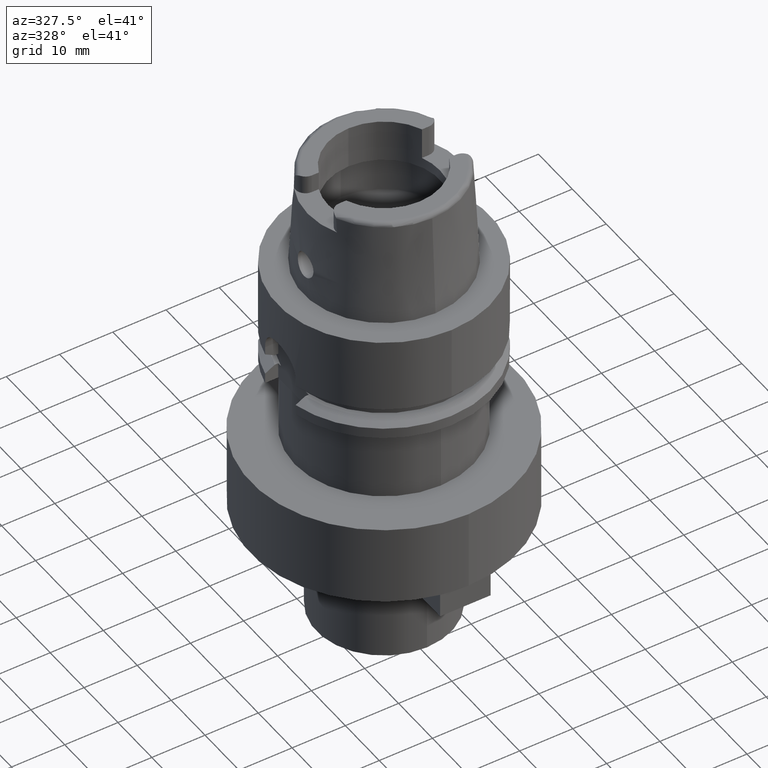
[diagram: clean part render]
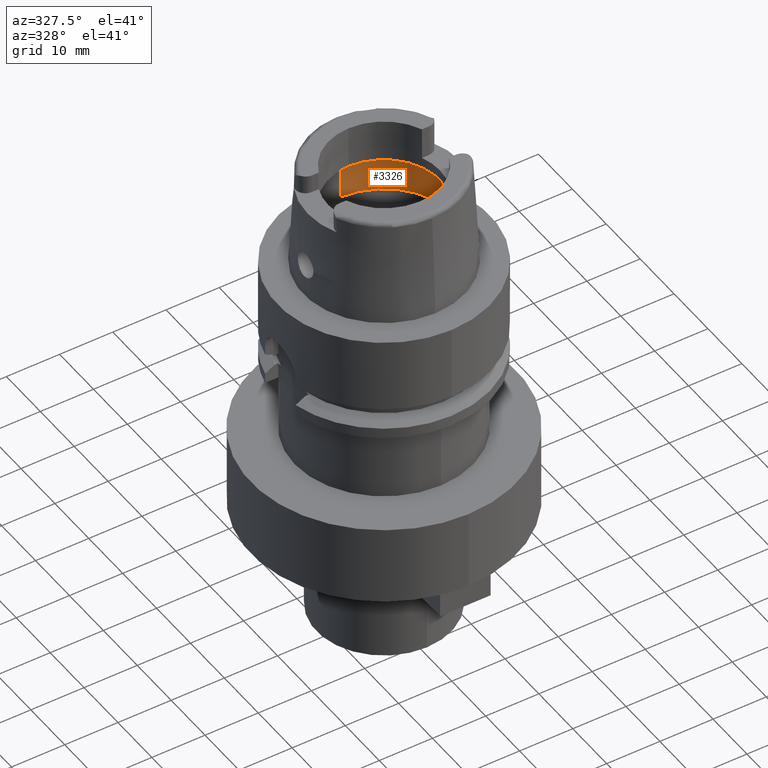
[diagram: same view with one face highlighted and labeled with its STEP entity id]
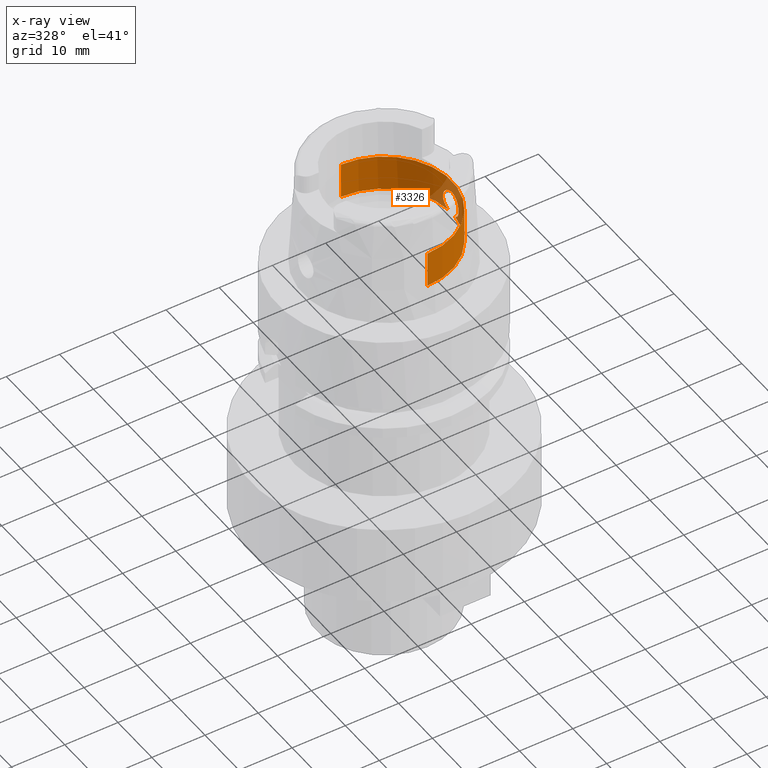
[diagram: x-ray of the same camera — body ghosted, the highlighted face saturated]
A machine part, auxiliary view. The second image highlights one B-rep face of the part: STEP entity #3326.
The next image is the same camera in x-ray: the body ghosted, the highlighted face saturated — about 10% of this face is hidden behind the body in this view.
In plain terms, the highlighted cylindrical surface (partial cylindrical patch) has radius 12.75 mm, axis along (0, 0, 1).
Its self-contained STEP definition (entity closure, byte-faithful):
#468=CARTESIAN_POINT('',(0.E0,0.E0,1.069831216351E1));
#469=DIRECTION('',(0.E0,0.E0,1.E0));
#470=DIRECTION('',(0.E0,-1.E0,0.E0));
#471=AXIS2_PLACEMENT_3D('',#468,#469,#470);
#516=DIRECTION('',(0.E0,-5.251609281303E-14,1.E0));
#517=VECTOR('',#516,6.764999999998E0);
#518=CARTESIAN_POINT('',(0.E0,-1.275E1,3.933312163513E0));
#519=LINE('',#518,#517);
#616=CARTESIAN_POINT('',(0.E0,0.E0,3.933312163513E0));
#617=DIRECTION('',(0.E0,0.E0,-1.E0));
#618=DIRECTION('',(9.968615066513E-1,-7.916524841634E-2,0.E0));
#619=AXIS2_PLACEMENT_3D('',#616,#617,#618);
#640=CARTESIAN_POINT('',(0.E0,0.E0,3.933312163513E0));
#641=DIRECTION('',(0.E0,0.E0,-1.E0));
#642=DIRECTION('',(0.E0,1.E0,0.E0));
#643=AXIS2_PLACEMENT_3D('',#640,#641,#642);
#665=CARTESIAN_POINT('',(1.270998420980E1,-1.009356917308E0,3.933312163513E0));
#666=CARTESIAN_POINT('',(1.269483754826E1,-1.200086109107E0,4.026463062103E0));
#667=CARTESIAN_POINT('',(1.265938320815E1,-1.541164298070E0,4.255445764535E0));
#668=CARTESIAN_POINT('',(1.260087449158E1,-1.954557774828E0,4.734712732083E0));
#669=CARTESIAN_POINT('',(1.255593315998E1,-2.218381533011E0,5.296058314245E0));
#670=CARTESIAN_POINT('',(1.253601676508E1,-2.325864774811E0,5.908059800596E0));
#671=CARTESIAN_POINT('',(1.254697604446E1,-2.267378454087E0,6.526015421675E0));
#672=CARTESIAN_POINT('',(1.258580059151E1,-2.046936775080E0,7.109411373791E0));
#673=CARTESIAN_POINT('',(1.264207532315E1,-1.674534206604E0,7.617455428653E0));
#674=CARTESIAN_POINT('',(1.269871156484E1,-1.184714506991E0,8.004047851088E0));
#675=CARTESIAN_POINT('',(1.274002099007E1,-6.096712203363E-1,8.245630393674E0));
#676=CARTESIAN_POINT('',(1.275E1,-2.082262193737E-1,8.3E0));
#677=CARTESIAN_POINT('',(1.275E1,0.E0,8.3E0));
#682=CARTESIAN_POINT('',(1.275E1,0.E0,8.3E0));
#683=CARTESIAN_POINT('',(1.275E1,2.095449251010E-1,8.3E0));
#684=CARTESIAN_POINT('',(1.273989383652E1,6.131107989976E-1,8.244944801112E0));
#685=CARTESIAN_POINT('',(1.269824475751E1,1.189837495225E0,8.001212866129E0));
#686=CARTESIAN_POINT('',(1.264138490466E1,1.679663226492E0,7.612251054997E0));
#687=CARTESIAN_POINT('',(1.258518186162E1,2.050642124194E0,7.102563634165E0));
#688=CARTESIAN_POINT('',(1.254666755605E1,2.269040050933E0,6.518614849381E0));
#689=CARTESIAN_POINT('',(1.253608792993E1,2.325490063593E0,5.901234155685E0));
#690=CARTESIAN_POINT('',(1.255625775136E1,2.216577437117E0,5.290819429337E0));
#691=CARTESIAN_POINT('',(1.260122772098E1,1.952275143846E0,4.731490027789E0));
#692=CARTESIAN_POINT('',(1.265957028803E1,1.539521713108E0,4.254222583518E0));
#693=CARTESIAN_POINT('',(1.269489055205E1,1.199418676850E0,4.026137092524E0));
#694=CARTESIAN_POINT('',(1.270998420980E1,1.009356917308E0,3.933312163513E0));
#699=DIRECTION('',(0.E0,5.251609281303E-14,1.E0));
#700=VECTOR('',#699,6.764999999998E0);
#701=CARTESIAN_POINT('',(0.E0,1.275E1,3.933312163513E0));
#702=LINE('',#701,#700);
#2597=CARTESIAN_POINT('',(0.E0,1.275E1,1.069831216351E1));
#2598=VERTEX_POINT('',#2597);
#2599=CARTESIAN_POINT('',(0.E0,-1.275E1,1.069831216351E1));
#2600=VERTEX_POINT('',#2599);
#2603=CARTESIAN_POINT('',(0.E0,-1.275E1,3.933312163513E0));
#2604=VERTEX_POINT('',#2603);
#2605=CARTESIAN_POINT('',(0.E0,1.275E1,3.933312163513E0));
#2606=VERTEX_POINT('',#2605);
#2611=VERTEX_POINT('',#665);
#2612=VERTEX_POINT('',#677);
#2614=VERTEX_POINT('',#694);
#3311=CARTESIAN_POINT('',(0.E0,0.E0,-7.66E1));
#3312=DIRECTION('',(0.E0,0.E0,1.E0));
#3313=DIRECTION('',(0.E0,1.E0,0.E0));
#3314=AXIS2_PLACEMENT_3D('',#3311,#3312,#3313);
#3315=CYLINDRICAL_SURFACE('',#3314,1.275E1);
#3316=ORIENTED_EDGE('',*,*,#3300,.T.);
#3318=ORIENTED_EDGE('',*,*,#3317,.T.);
#3319=ORIENTED_EDGE('',*,*,#3288,.F.);
#3320=ORIENTED_EDGE('',*,*,#3218,.T.);
#3321=ORIENTED_EDGE('',*,*,#3188,.F.);
#3322=ORIENTED_EDGE('',*,*,#3215,.F.);
#3323=ORIENTED_EDGE('',*,*,#3282,.F.);
#3324=EDGE_LOOP('',(#3316,#3318,#3319,#3320,#3321,#3322,#3323));
#3325=FACE_OUTER_BOUND('',#3324,.F.);
#472=CIRCLE('',#471,1.275E1);
#620=CIRCLE('',#619,1.275E1);
#644=CIRCLE('',#643,1.275E1);
#678=B_SPLINE_CURVE_WITH_KNOTS('',3,(#665,#666,#667,#668,#669,#670,#671,#672,
#673,#674,#675,#676,#677),.UNSPECIFIED.,.F.,.F.,(4,1,1,1,1,1,1,1,1,1,4),(0.E0,
1.E-1,2.E-1,3.E-1,4.E-1,5.E-1,6.E-1,7.E-1,8.E-1,9.E-1,1.E0),.UNSPECIFIED.);
#695=B_SPLINE_CURVE_WITH_KNOTS('',3,(#682,#683,#684,#685,#686,#687,#688,#689,
#690,#691,#692,#693,#694),.UNSPECIFIED.,.F.,.F.,(4,1,1,1,1,1,1,1,1,1,4),(0.E0,
1.E-1,2.E-1,3.E-1,4.E-1,5.E-1,6.E-1,7.E-1,8.E-1,9.E-1,1.E0),.UNSPECIFIED.);
#3188=EDGE_CURVE('',#2600,#2598,#472,.T.);
#3215=EDGE_CURVE('',#2604,#2600,#519,.T.);
#3218=EDGE_CURVE('',#2606,#2598,#702,.T.);
#3282=EDGE_CURVE('',#2611,#2604,#620,.T.);
#3288=EDGE_CURVE('',#2606,#2614,#644,.T.);
#3300=EDGE_CURVE('',#2611,#2612,#678,.T.);
#3317=EDGE_CURVE('',#2612,#2614,#695,.T.);
#3326=ADVANCED_FACE('',(#3325),#3315,.F.);